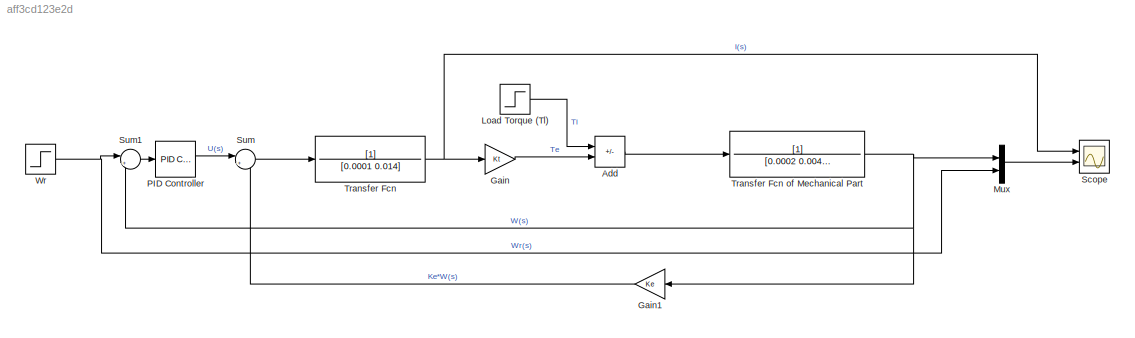
MODEL slx_aff3cd123e2d
KIND model
CONFIG AbsTol = auto
CONFIG EnableMultiTasking = off
CONFIG FixedStep = auto
CONFIG MaxStep = auto
CONFIG MinStep = auto
CONFIG RelTol = 1e-3
CONFIG SampleTimeConstraint = Unconstrained
CONFIG SolverName = VariableStepAuto
CONFIG StartTime = 0.0
CONFIG StopTime = 1.2
WORKSPACE source: mxarray member
WORKSPACE Ke = 0.0275
WORKSPACE Kt = 0.0275
BLOCK [Sum] Add
  IconShape = rectangular
  Inputs = -+
  Ports = [2, 1]
BLOCK [Gain] Gain
  Gain = Kt
BLOCK [Gain] Gain1
  Gain = Ke
  NameLocation = top
BLOCK [Step] Load Torque (Tl)
  SampleTime = 0
BLOCK [Mux] Mux
  DisplayOption = bar
  Inputs = 2
  Ports = [2, 1]
BLOCK [Reference] PID Controller  REF=pid_lib/PID Controller
  Ports = [1, 1]
  SourceBlock = pid_lib/PID Controller
  SourceProductBaseCode = SL
  SourceType = PID 1dof
BLOCK [Scope] Scope
  Floating = off
  NumInputPorts = 2
  Ports = [2]
  ScopeSpecificationString = Simulink.scopes.TimeScopeBlockCfg('CurrentConfiguration', extmgr.ConfigurationSet(extmgr.Configuration('Core','General UI',true),extmgr.Configuration('Core','Source UI',true),extmgr.Configuration('Sources','WiredSimulink',true),extmgr.Configuration('Visuals','Time Domain',true,'SerializedDisplays',{struct('MinYLimReal','-12.06001','MaxYLimReal','74.64288','YLabelReal','','MinYLimMag','0.00000','Ma...<+1350ch>
BLOCK [Sum] Sum
  Inputs = |+-
  Ports = [2, 1]
BLOCK [Sum] Sum1
  Inputs = |+-
  Ports = [2, 1]
BLOCK [TransferFcn] Transfer Fcn 
  Denominator = [0.0001 0.014]
BLOCK [TransferFcn] Transfer Fcn of Mechanical Part
  Denominator = [0.0002 0.004586]
BLOCK [Step] Wr
  SampleTime = 0
LINE Add:1 -> Transfer Fcn of Mechanical Part:1
LINE Gain1:1 -> Sum:2
LINE Gain:1 -> Add:2
LINE Load Torque (Tl):1 -> Add:1
LINE Mux:1 -> Scope:2
LINE PID Controller:1 -> Sum:1
LINE Sum1:1 -> PID Controller:1
LINE Sum:1 -> Transfer Fcn :1
NET Transfer Fcn :1 -> Gain:1, Scope:1
NET Transfer Fcn of Mechanical Part:1 -> Gain1:1, Mux:1, Sum1:2
NET Wr:1 -> Mux:2, Sum1:1
note: NET lines group one-source signal fan-out (src -> all destinations, sorted); 1:1 wires keep LINE
